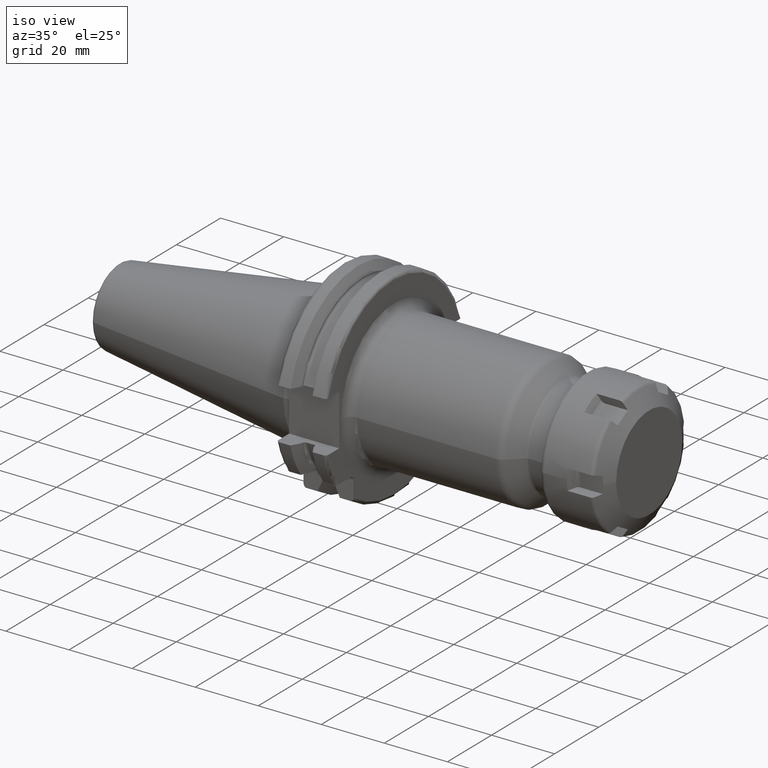
[diagram: clean part render]
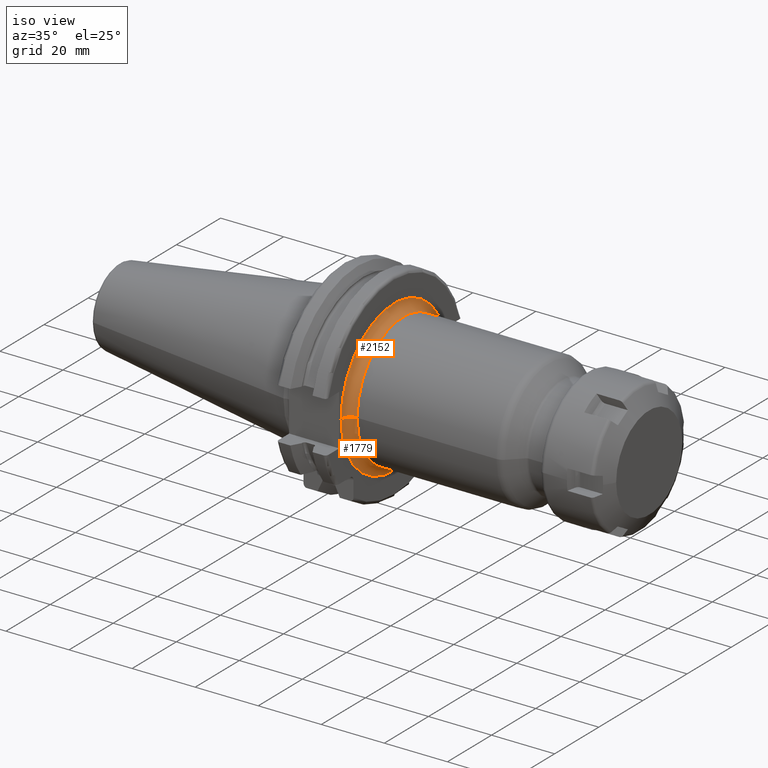
[diagram: same view with one multi-face feature highlighted, each face labeled with its STEP entity id]
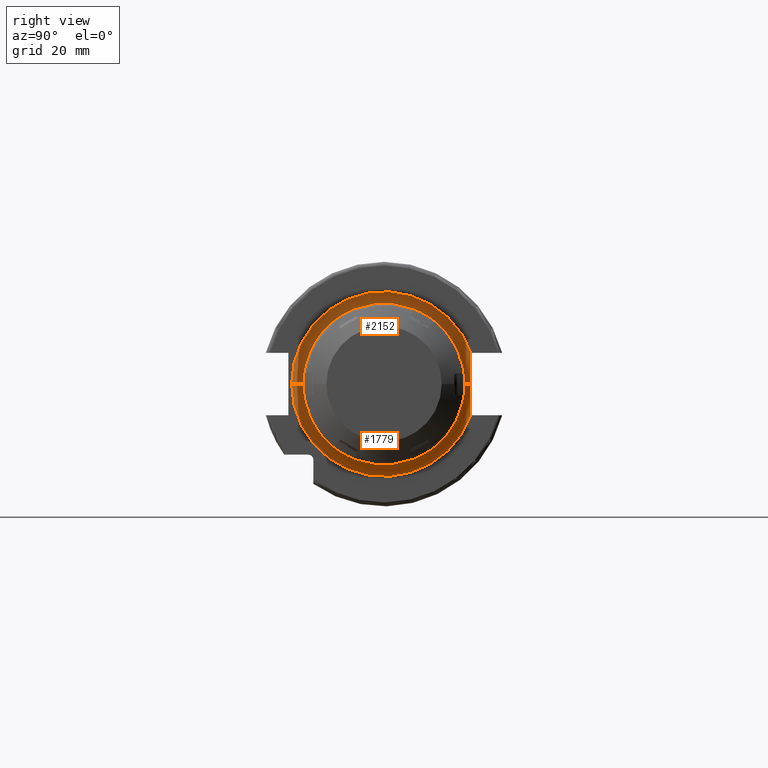
[diagram: same view with one multi-face feature highlighted, each face labeled with its STEP entity id]
A machine part, iso view. The highlighted faces form ONE feature: a constant-radius fillet chain: 2 tangent blend faces with common blend radius 3 mm. The faces share edges in the B-rep.
A second angle (right view) of the same feature is appended — it is thin or edge-on in the first view.
Their STEP definitions:
[1] entity #1779 (Torus):
#122=CARTESIAN_POINT('',(1.942369077422E1,2.255E1,1.524271067201E-3));
#123=CARTESIAN_POINT('',(1.942372117924E1,2.255E1,-8.131939112290E-1));
#124=CARTESIAN_POINT('',(1.937200610986E1,2.255E1,-2.500588059978E0));
#125=CARTESIAN_POINT('',(1.915998444249E1,2.255E1,-5.298177378368E0));
#126=CARTESIAN_POINT('',(1.905444329212E1,2.255E1,-7.156361443068E0));
#127=CARTESIAN_POINT('',(1.905025814952E1,2.255E1,-8.1E0));
#133=CARTESIAN_POINT('',(1.905E1,2.259181553815E1,-8.099991016016E0));
#134=CARTESIAN_POINT('',(1.905E1,2.258717060572E1,-8.099991016016E0));
#135=CARTESIAN_POINT('',(1.905001911754E1,2.257787592755E1,-8.100004192526E0));
#136=CARTESIAN_POINT('',(1.905010516132E1,2.256393989361E1,-8.099998802136E0));
#137=CARTESIAN_POINT('',(1.905020077624E1,2.255464668904E1,-8.1E0));
#138=CARTESIAN_POINT('',(1.905025814952E1,2.255E1,-8.1E0));
#144=CARTESIAN_POINT('',(2.205E1,-2.4E1,2.725597525455E-13));
#145=DIRECTION('',(0.E0,-1.135549987374E-14,-1.E0));
#146=DIRECTION('',(-1.E0,2.013204417987E-14,0.E0));
#147=AXIS2_PLACEMENT_3D('',#144,#145,#146);
#149=CARTESIAN_POINT('',(1.905E1,0.E0,0.E0));
#150=DIRECTION('',(1.E0,0.E0,0.E0));
#151=DIRECTION('',(0.E0,-1.E0,0.E0));
#152=AXIS2_PLACEMENT_3D('',#149,#150,#151);
#515=CARTESIAN_POINT('',(1.942369077422E1,2.255E1,1.524271067201E-3));
#517=CARTESIAN_POINT('',(2.205E1,2.399999994517E1,1.622284058949E-3));
#518=DIRECTION('',(0.E0,-6.759516912288E-5,9.999999977154E-1));
#519=DIRECTION('',(-8.754364085921E-1,-4.833333150569E-1,-3.267099724863E-5));
#520=AXIS2_PLACEMENT_3D('',#517,#518,#519);
#551=CARTESIAN_POINT('',(2.205E1,0.E0,0.E0));
#552=DIRECTION('',(1.E0,0.E0,0.E0));
#553=DIRECTION('',(0.E0,-1.E0,0.E0));
#554=AXIS2_PLACEMENT_3D('',#551,#552,#553);
#1501=CARTESIAN_POINT('',(1.905E1,-2.4E1,0.E0));
#1502=CARTESIAN_POINT('',(1.905E1,2.259181255353E1,-8.100000342365E0));
#1503=VERTEX_POINT('',#1501);
#1504=VERTEX_POINT('',#1502);
#1505=CARTESIAN_POINT('',(2.205E1,-2.1E1,0.E0));
#1506=CARTESIAN_POINT('',(2.205E1,2.1E1,0.E0));
#1507=VERTEX_POINT('',#1505);
#1508=VERTEX_POINT('',#1506);
#1529=VERTEX_POINT('',#515);
#1530=VERTEX_POINT('',#127);
#1762=CARTESIAN_POINT('',(2.205E1,0.E0,0.E0));
#1763=DIRECTION('',(1.E0,0.E0,0.E0));
#1764=DIRECTION('',(0.E0,-9.999731921857E-1,7.322220282676E-3));
#1765=AXIS2_PLACEMENT_3D('',#1762,#1763,#1764);
#1766=TOROIDAL_SURFACE('',#1765,2.4E1,3.E0);
#1768=ORIENTED_EDGE('',*,*,#1767,.F.);
#1770=ORIENTED_EDGE('',*,*,#1769,.T.);
#1772=ORIENTED_EDGE('',*,*,#1771,.T.);
#1774=ORIENTED_EDGE('',*,*,#1773,.F.);
#1775=ORIENTED_EDGE('',*,*,#1709,.T.);
#1776=ORIENTED_EDGE('',*,*,#1730,.F.);
#1777=EDGE_LOOP('',(#1768,#1770,#1772,#1774,#1775,#1776));
#1778=FACE_OUTER_BOUND('',#1777,.F.);
#1779=ADVANCED_FACE('',(#1778),#1766,.F.);
#128=B_SPLINE_CURVE_WITH_KNOTS('',3,(#122,#123,#124,#125,#126,#127),
.UNSPECIFIED.,.F.,.F.,(4,1,1,4),(0.E0,3.333333333333E-1,6.666666666667E-1,1.E0),
.UNSPECIFIED.);
#139=B_SPLINE_CURVE_WITH_KNOTS('',3,(#133,#134,#135,#136,#137,#138),
.UNSPECIFIED.,.F.,.F.,(4,1,1,4),(0.E0,3.333333333333E-1,6.666666666667E-1,1.E0),
.UNSPECIFIED.);
#148=CIRCLE('',#147,3.E0);
#153=CIRCLE('',#152,2.4E1);
#521=CIRCLE('',#520,3.E0);
#555=CIRCLE('',#554,2.1E1);
#1709=EDGE_CURVE('',#1529,#1530,#128,.T.);
#1730=EDGE_CURVE('',#1504,#1530,#139,.T.);
#1767=EDGE_CURVE('',#1503,#1504,#153,.T.);
#1769=EDGE_CURVE('',#1503,#1507,#148,.T.);
#1771=EDGE_CURVE('',#1507,#1508,#555,.T.);
#1773=EDGE_CURVE('',#1529,#1508,#521,.T.);
[2] entity #2152 (Torus):
#144=CARTESIAN_POINT('',(2.205E1,-2.4E1,2.725597525455E-13));
#145=DIRECTION('',(0.E0,-1.135549987374E-14,-1.E0));
#146=DIRECTION('',(-1.E0,2.013204417987E-14,0.E0));
#147=AXIS2_PLACEMENT_3D('',#144,#145,#146);
#182=CARTESIAN_POINT('',(1.905E1,0.E0,0.E0));
#183=DIRECTION('',(1.E0,0.E0,0.E0));
#184=DIRECTION('',(0.E0,9.413255104507E-1,3.375000494441E-1));
#185=AXIS2_PLACEMENT_3D('',#182,#183,#184);
#503=CARTESIAN_POINT('',(1.905025814952E1,2.255E1,8.1E0));
#504=CARTESIAN_POINT('',(1.905020077622E1,2.255464669029E1,8.1E0));
#505=CARTESIAN_POINT('',(1.905010516129E1,2.256394084695E1,8.099995821998E0));
#506=CARTESIAN_POINT('',(1.905001911750E1,2.257787261128E1,8.100014623005E0));
#507=CARTESIAN_POINT('',(1.905E1,2.258717773781E1,8.099968664989E0));
#508=CARTESIAN_POINT('',(1.905E1,2.259182266590E1,8.099968664989E0));
#510=CARTESIAN_POINT('',(1.905025814952E1,2.255E1,8.1E0));
#511=CARTESIAN_POINT('',(1.905444152203E1,2.255E1,7.156760552065E0));
#512=CARTESIAN_POINT('',(1.915989887936E1,2.255E1,5.299331655584E0));
#513=CARTESIAN_POINT('',(1.937186058352E1,2.255E1,2.502694074223E0));
#514=CARTESIAN_POINT('',(1.942366038066E1,2.255E1,8.159355935888E-1));
#515=CARTESIAN_POINT('',(1.942369077422E1,2.255E1,1.524271067201E-3));
#517=CARTESIAN_POINT('',(2.205E1,2.399999994517E1,1.622284058949E-3));
#518=DIRECTION('',(0.E0,-6.759516912288E-5,9.999999977154E-1));
#519=DIRECTION('',(-8.754364085921E-1,-4.833333150569E-1,-3.267099724863E-5));
#520=AXIS2_PLACEMENT_3D('',#517,#518,#519);
#527=CARTESIAN_POINT('',(2.205E1,0.E0,0.E0));
#528=DIRECTION('',(1.E0,0.E0,0.E0));
#529=DIRECTION('',(0.E0,1.E0,0.E0));
#530=AXIS2_PLACEMENT_3D('',#527,#528,#529);
#1501=CARTESIAN_POINT('',(1.905E1,-2.4E1,0.E0));
#1503=VERTEX_POINT('',#1501);
#1505=CARTESIAN_POINT('',(2.205E1,-2.1E1,0.E0));
#1506=CARTESIAN_POINT('',(2.205E1,2.1E1,0.E0));
#1507=VERTEX_POINT('',#1505);
#1508=VERTEX_POINT('',#1506);
#1509=CARTESIAN_POINT('',(1.905E1,2.259181225082E1,8.100001186659E0));
#1510=VERTEX_POINT('',#1509);
#1528=VERTEX_POINT('',#510);
#1529=VERTEX_POINT('',#515);
#2138=CARTESIAN_POINT('',(2.205E1,0.E0,0.E0));
#2139=DIRECTION('',(1.E0,0.E0,0.E0));
#2140=DIRECTION('',(0.E0,1.485959642860E-3,-9.999988959614E-1));
#2141=AXIS2_PLACEMENT_3D('',#2138,#2139,#2140);
#2142=TOROIDAL_SURFACE('',#2141,2.4E1,3.E0);
#2143=ORIENTED_EDGE('',*,*,#1807,.F.);
#2144=ORIENTED_EDGE('',*,*,#2109,.F.);
#2145=ORIENTED_EDGE('',*,*,#1711,.T.);
#2146=ORIENTED_EDGE('',*,*,#1773,.T.);
#2148=ORIENTED_EDGE('',*,*,#2147,.T.);
#2149=ORIENTED_EDGE('',*,*,#1769,.F.);
#2150=EDGE_LOOP('',(#2143,#2144,#2145,#2146,#2148,#2149));
#2151=FACE_OUTER_BOUND('',#2150,.F.);
#2152=ADVANCED_FACE('',(#2151),#2142,.F.);
#148=CIRCLE('',#147,3.E0);
#186=CIRCLE('',#185,2.4E1);
#509=B_SPLINE_CURVE_WITH_KNOTS('',3,(#503,#504,#505,#506,#507,#508),
.UNSPECIFIED.,.F.,.F.,(4,1,1,4),(0.E0,3.333333333333E-1,6.666666666667E-1,1.E0),
.UNSPECIFIED.);
#516=B_SPLINE_CURVE_WITH_KNOTS('',3,(#510,#511,#512,#513,#514,#515),
.UNSPECIFIED.,.F.,.F.,(4,1,1,4),(0.E0,3.333333333333E-1,6.666666666667E-1,1.E0),
.UNSPECIFIED.);
#521=CIRCLE('',#520,3.E0);
#531=CIRCLE('',#530,2.1E1);
#1711=EDGE_CURVE('',#1528,#1529,#516,.T.);
#1769=EDGE_CURVE('',#1503,#1507,#148,.T.);
#1773=EDGE_CURVE('',#1529,#1508,#521,.T.);
#1807=EDGE_CURVE('',#1510,#1503,#186,.T.);
#2109=EDGE_CURVE('',#1528,#1510,#509,.T.);
#2147=EDGE_CURVE('',#1508,#1507,#531,.T.);